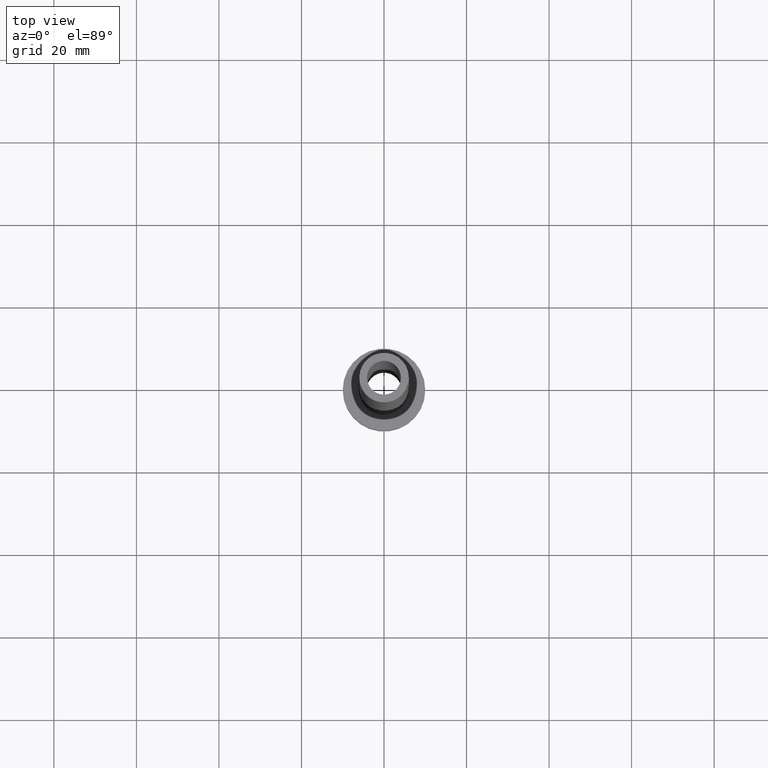
[diagram: clean part render]
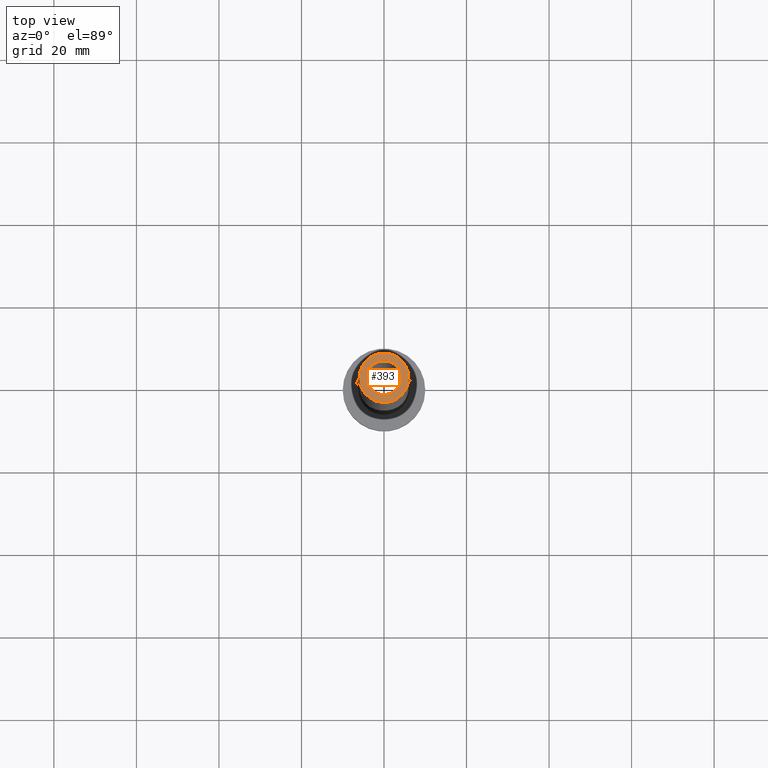
[diagram: same view with one face highlighted and labeled with its STEP entity id]
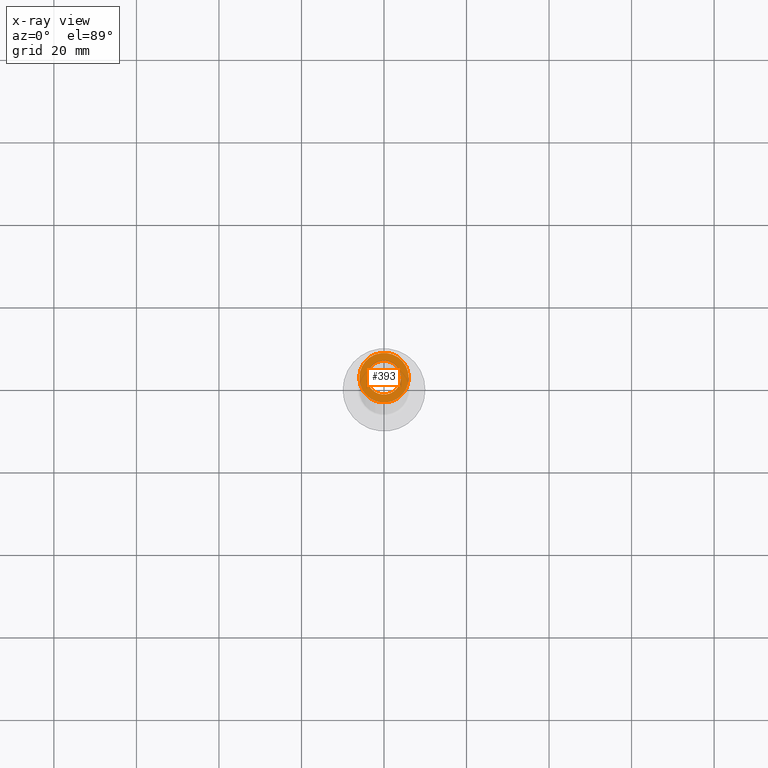
[diagram: x-ray of the same camera — body ghosted, the highlighted face saturated]
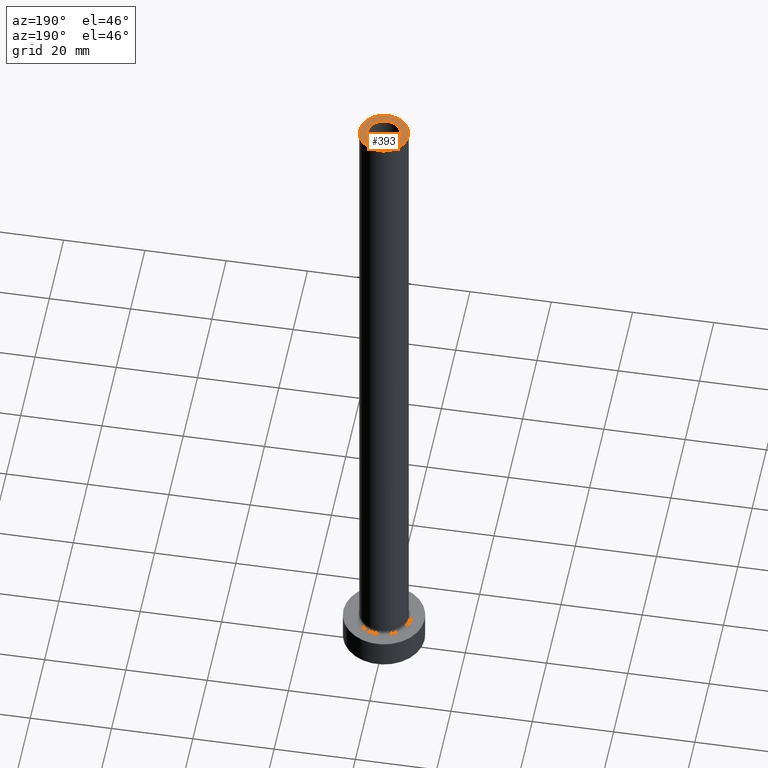
[diagram: same view with one face highlighted and labeled with its STEP entity id]
A machine part, top view. The second image highlights one B-rep face of the part: STEP entity #393.
The next image is the same camera in x-ray: the body ghosted, the highlighted face saturated — about 0% of this face is hidden behind the body in this view.
A second angle (auxiliary view) of the same face is appended — the face is thin or edge-on in the first view.
In plain terms, the highlighted planar face has unit normal (0, 0, 1).
Its self-contained STEP definition (entity closure, byte-faithful):
#14 = DIRECTION ( 'NONE',  ( 1.000000000000000000, 0.000000000000000000, 0.000000000000000000 ) ) ;
#26 = AXIS2_PLACEMENT_3D ( 'NONE', #326, #434, #14 ) ;
#33 = FACE_BOUND ( 'NONE', #156, .T. ) ;
#48 = DIRECTION ( 'NONE',  ( 1.000000000000000000, 0.000000000000000000, 0.000000000000000000 ) ) ;
#49 = AXIS2_PLACEMENT_3D ( 'NONE', #158, #303, #279 ) ;
#65 = CARTESIAN_POINT ( 'NONE',  ( 6.000000000000000888, 7.347880794884119736E-16, 175.0000000000000284 ) ) ;
#75 = EDGE_CURVE ( 'NONE', #167, #106, #197, .T. ) ;
#76 = ORIENTED_EDGE ( 'NONE', *, *, #193, .T. ) ;
#83 = EDGE_LOOP ( 'NONE', ( #76, #137 ) ) ;
#86 = VERTEX_POINT ( 'NONE', #65 ) ;
#105 = EDGE_CURVE ( 'NONE', #106, #167, #161, .T. ) ;
#106 = VERTEX_POINT ( 'NONE', #347 ) ;
#107 = DIRECTION ( 'NONE',  ( 1.000000000000000000, 0.000000000000000000, 0.000000000000000000 ) ) ;
#137 = ORIENTED_EDGE ( 'NONE', *, *, #224, .T. ) ;
#156 = EDGE_LOOP ( 'NONE', ( #353, #278 ) ) ;
#158 = CARTESIAN_POINT ( 'NONE',  ( 0.000000000000000000, 0.000000000000000000, 175.0000000000000284 ) ) ;
#161 = CIRCLE ( 'NONE', #308, 4.099999999999999645 ) ;
#162 = CIRCLE ( 'NONE', #356, 6.000000000000000888 ) ;
#167 = VERTEX_POINT ( 'NONE', #286 ) ;
#193 = EDGE_CURVE ( 'NONE', #366, #86, #162, .T. ) ;
#197 = CIRCLE ( 'NONE', #49, 4.099999999999999645 ) ;
#199 = DIRECTION ( 'NONE',  ( 0.000000000000000000, 0.000000000000000000, 1.000000000000000000 ) ) ;
#206 = AXIS2_PLACEMENT_3D ( 'NONE', #422, #377, #416 ) ;
#224 = EDGE_CURVE ( 'NONE', #86, #366, #444, .T. ) ;
#253 = DIRECTION ( 'NONE',  ( 0.000000000000000000, 0.000000000000000000, 1.000000000000000000 ) ) ;
#278 = ORIENTED_EDGE ( 'NONE', *, *, #75, .F. ) ;
#279 = DIRECTION ( 'NONE',  ( 1.000000000000000000, 0.000000000000000000, 0.000000000000000000 ) ) ;
#285 = CARTESIAN_POINT ( 'NONE',  ( 0.000000000000000000, 0.000000000000000000, 175.0000000000000284 ) ) ;
#286 = CARTESIAN_POINT ( 'NONE',  ( 4.099999999999999645, 5.021051876504147385E-16, 175.0000000000000284 ) ) ;
#289 = CARTESIAN_POINT ( 'NONE',  ( -6.000000000000000888, 0.000000000000000000, 175.0000000000000284 ) ) ;
#303 = DIRECTION ( 'NONE',  ( 0.000000000000000000, 0.000000000000000000, 1.000000000000000000 ) ) ;
#308 = AXIS2_PLACEMENT_3D ( 'NONE', #394, #199, #107 ) ;
#319 = PLANE ( 'NONE',  #206 ) ;
#326 = CARTESIAN_POINT ( 'NONE',  ( 0.000000000000000000, 0.000000000000000000, 175.0000000000000284 ) ) ;
#347 = CARTESIAN_POINT ( 'NONE',  ( -4.099999999999999645, 0.000000000000000000, 175.0000000000000284 ) ) ;
#353 = ORIENTED_EDGE ( 'NONE', *, *, #105, .F. ) ;
#356 = AXIS2_PLACEMENT_3D ( 'NONE', #285, #253, #48 ) ;
#366 = VERTEX_POINT ( 'NONE', #289 ) ;
#377 = DIRECTION ( 'NONE',  ( 0.000000000000000000, 0.000000000000000000, 1.000000000000000000 ) ) ;
#393 = ADVANCED_FACE ( 'NONE', ( #33, #460 ), #319, .T. ) ;
#394 = CARTESIAN_POINT ( 'NONE',  ( 0.000000000000000000, 0.000000000000000000, 175.0000000000000284 ) ) ;
#416 = DIRECTION ( 'NONE',  ( 1.000000000000000000, 0.000000000000000000, -0.000000000000000000 ) ) ;
#422 = CARTESIAN_POINT ( 'NONE',  ( 0.000000000000000000, 0.000000000000000000, 175.0000000000000284 ) ) ;
#434 = DIRECTION ( 'NONE',  ( 0.000000000000000000, 0.000000000000000000, 1.000000000000000000 ) ) ;
#444 = CIRCLE ( 'NONE', #26, 6.000000000000000888 ) ;
#460 = FACE_OUTER_BOUND ( 'NONE', #83, .T. ) ;